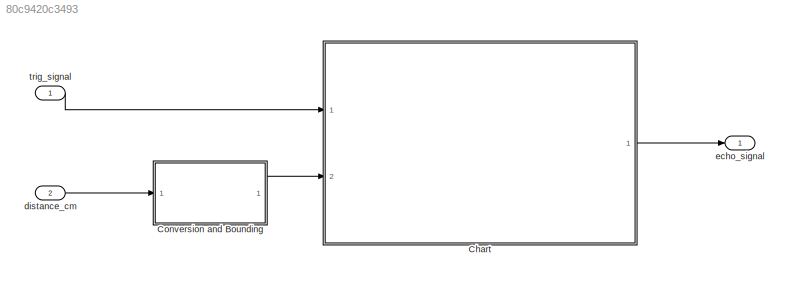
MODEL slx_80c9420c3493
KIND model
CONFIG AbsTol = auto
CONFIG EnableMultiTasking = on
CONFIG FixedStep = T_sample_control
CONFIG MaxStep = 0.1
CONFIG MinStep = auto
CONFIG RelTol = 1e-3
CONFIG SampleTimeConstraint = Unconstrained
CONFIG SolverName = FixedStepDiscrete
CONFIG StartTime = 0.0
CONFIG StopTime = inf
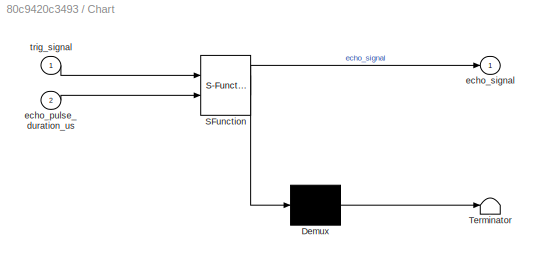
BLOCK [SubSystem] Chart
  ErrorFcn = Stateflow.Translate.translate
  PermitHierarchicalResolution = ExplicitOnly
  Ports = [2, 1]
  RequestExecContextInheritance = off
  SFBlockType = Chart
  TreatAsAtomicUnit = on
BLOCK [Demux] Chart/ Demux 
  Outputs = 1
  Ports = [1, 1]
BLOCK [S-Function] Chart/ SFunction 
  EnableBusSupport = on
  FunctionName = sf_sfun
  PortCounts = [2 2]
  Ports = [2, 2]
  SFcnIsStateOwnerBlock = off
  SFunctionDeploymentMode = off
  Tag = Stateflow S-Function 3
BLOCK [Terminator] Chart/ Terminator 
BLOCK [Inport] Chart/echo_pulse_duration_us
  Port = 2
BLOCK [Outport] Chart/echo_signal
BLOCK [Inport] Chart/trig_signal
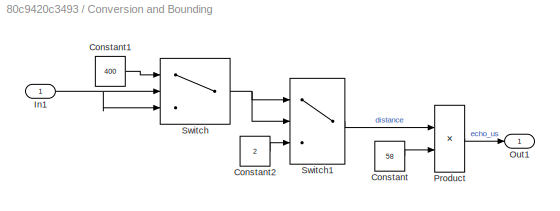
BLOCK [SubSystem] Conversion and Bounding
  Ports = [1, 1]
  RequestExecContextInheritance = off
BLOCK [Constant] Conversion and Bounding/Constant
  Value = 58
BLOCK [Constant] Conversion and Bounding/Constant1
  Value = 400
BLOCK [Constant] Conversion and Bounding/Constant2
  Value = 2
BLOCK [Inport] Conversion and Bounding/In1
BLOCK [Outport] Conversion and Bounding/Out1
BLOCK [Product] Conversion and Bounding/Product
  Ports = [2, 1]
BLOCK [Switch] Conversion and Bounding/Switch
  Criteria = u2 > Threshold
  InputSameDT = off
  SaturateOnIntegerOverflow = off
  Threshold = 400
BLOCK [Switch] Conversion and Bounding/Switch1
  InputSameDT = off
  SaturateOnIntegerOverflow = off
  Threshold = 2
BLOCK [Inport] distance_cm
  Port = 2
BLOCK [Outport] echo_signal
  OutDataTypeStr = boolean
BLOCK [Inport] trig_signal
  OutDataTypeStr = boolean
LINE Chart:1 -> echo_signal:1
LINE Conversion and Bounding/Constant1:1 -> Conversion and Bounding/Switch:1
LINE Conversion and Bounding/Constant2:1 -> Conversion and Bounding/Switch1:3
LINE Conversion and Bounding/Constant:1 -> Conversion and Bounding/Product:2
NET Conversion and Bounding/In1:1 -> Conversion and Bounding/Switch:2, Conversion and Bounding/Switch:3
LINE Conversion and Bounding/Product:1 -> Conversion and Bounding/Out1:1
LINE Conversion and Bounding/Switch1:1 -> Conversion and Bounding/Product:1
NET Conversion and Bounding/Switch:1 -> Conversion and Bounding/Switch1:1, Conversion and Bounding/Switch1:2
LINE Conversion and Bounding:1 -> Chart:2
LINE distance_cm:1 -> Conversion and Bounding:1
LINE trig_signal:1 -> Chart:1
note: NET lines group one-source signal fan-out (src -> all destinations, sorted); 1:1 wires keep LINE
CHART Chart states=3 transitions=8
  STATE_LABEL 'WAIT_TO_RISE'
  STATE_LABEL 'WAIT_TO_FALL'
  STATE_LABEL 'RESPONS_ECHO_SIGNAL\nentry:\necho_signal = true;\nexit:\necho_signal = false;'
CHART  states=0 transitions=0
